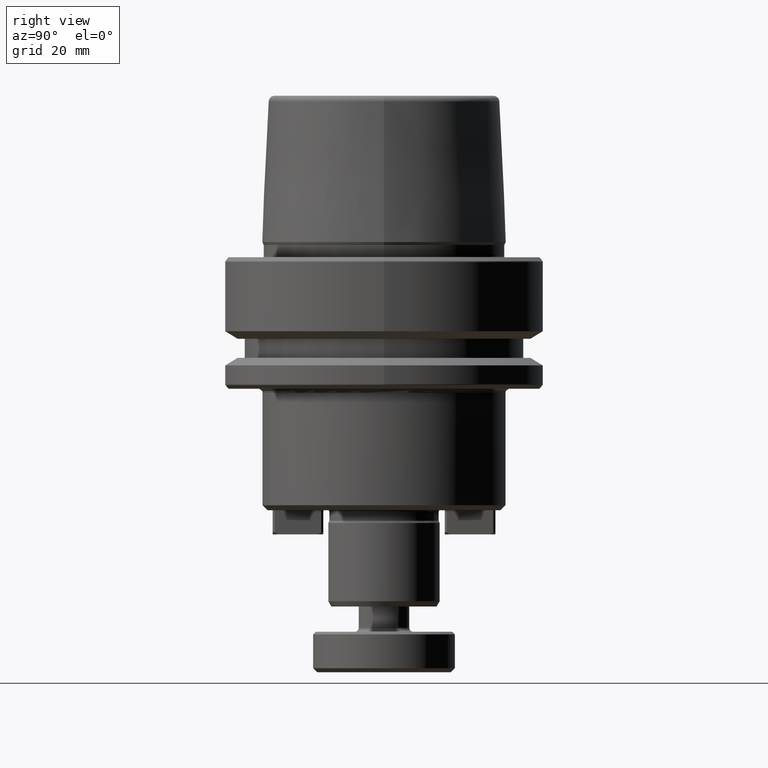
[diagram: clean part render]
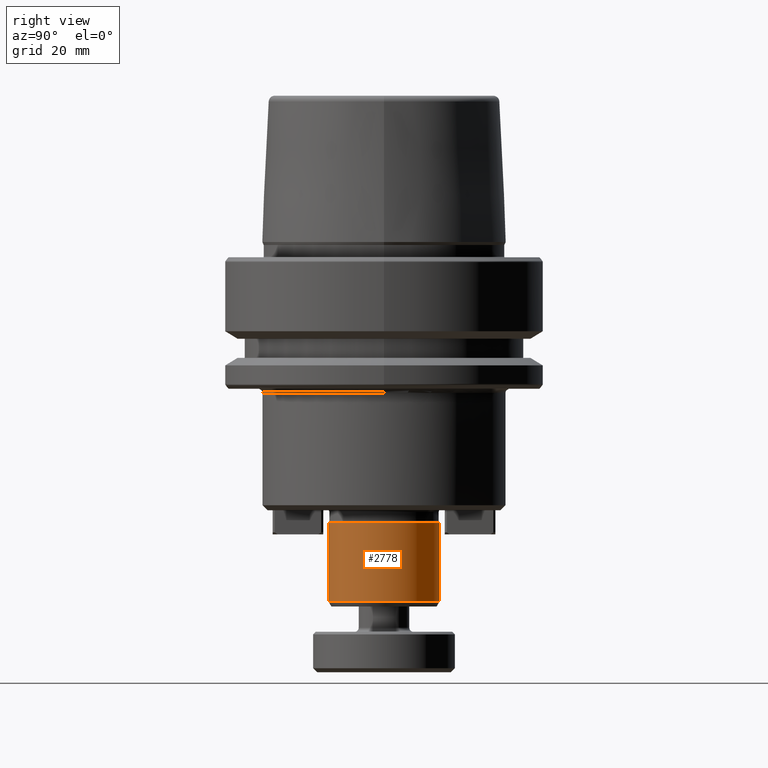
[diagram: same view with one face highlighted and labeled with its STEP entity id]
A machine part, right view. The second image highlights one B-rep face of the part: STEP entity #2778.
In plain terms, the highlighted cylindrical surface (partial cylindrical patch) has radius 11 mm, axis along (-0, 0, -1).
Its self-contained STEP definition (entity closure, byte-faithful):
#20 = DIRECTION ( 'NONE',  ( -0.0000000000000000000, 1.993611068379415200E-017, -1.000000000000000000 ) ) ;
#51 = FACE_OUTER_BOUND ( 'NONE', #118, .T. ) ;
#84 = EDGE_CURVE ( 'NONE', #997, #281, #1124, .T. ) ;
#111 = DIRECTION ( 'NONE',  ( -0.0000000000000000000, 1.993611068379415200E-017, -1.000000000000000000 ) ) ;
#118 = EDGE_LOOP ( 'NONE', ( #2139, #953, #155, #2629 ) ) ;
#155 = ORIENTED_EDGE ( 'NONE', *, *, #823, .F. ) ;
#184 = AXIS2_PLACEMENT_3D ( 'NONE', #2575, #2375, #729 ) ;
#193 = CARTESIAN_POINT ( 'NONE',  ( 0.0000000000000000000, 8.572527594031484000E-016, -69.00000000000000000 ) ) ;
#205 = DIRECTION ( 'NONE',  ( 0.0000000000000000000, 1.000000000000000000, 0.0000000000000000000 ) ) ;
#240 = LINE ( 'NONE', #1879, #2460 ) ;
#281 = VERTEX_POINT ( 'NONE', #315 ) ;
#315 = CARTESIAN_POINT ( 'NONE',  ( 0.0000000000000000000, 11.00000000000000000, -67.96076951545867900 ) ) ;
#369 = CIRCLE ( 'NONE', #739, 11.00000000000000000 ) ;
#571 = CIRCLE ( 'NONE', #184, 11.00000000000000000 ) ;
#729 = DIRECTION ( 'NONE',  ( 0.0000000000000000000, 1.000000000000000000, 0.0000000000000000000 ) ) ;
#739 = AXIS2_PLACEMENT_3D ( 'NONE', #1603, #111, #1387 ) ;
#823 = EDGE_CURVE ( 'NONE', #281, #1158, #369, .T. ) ;
#953 = ORIENTED_EDGE ( 'NONE', *, *, #1419, .T. ) ;
#974 = CARTESIAN_POINT ( 'NONE',  ( 1.347111479062088400E-015, -11.00000000000000000, -67.96076951545867900 ) ) ;
#997 = VERTEX_POINT ( 'NONE', #1957 ) ;
#1124 = LINE ( 'NONE', #1683, #1916 ) ;
#1158 = VERTEX_POINT ( 'NONE', #974 ) ;
#1240 = DIRECTION ( 'NONE',  ( -0.0000000000000000000, 1.993611068379415200E-017, -1.000000000000000000 ) ) ;
#1387 = DIRECTION ( 'NONE',  ( 0.0000000000000000000, 1.000000000000000000, 0.0000000000000000000 ) ) ;
#1394 = CARTESIAN_POINT ( 'NONE',  ( 1.347111479062088400E-015, -11.00000000000000000, -52.50000000000000700 ) ) ;
#1419 = EDGE_CURVE ( 'NONE', #1831, #1158, #240, .T. ) ;
#1603 = CARTESIAN_POINT ( 'NONE',  ( 0.0000000000000000000, 8.365345454373595500E-016, -67.96076951545867900 ) ) ;
#1683 = CARTESIAN_POINT ( 'NONE',  ( 0.0000000000000000000, 11.00000000000000000, -69.00000000000000000 ) ) ;
#1715 = EDGE_CURVE ( 'NONE', #997, #1831, #571, .T. ) ;
#1831 = VERTEX_POINT ( 'NONE', #1394 ) ;
#1879 = CARTESIAN_POINT ( 'NONE',  ( 1.347111479062088400E-015, -11.00000000000000000, -69.00000000000000000 ) ) ;
#1916 = VECTOR ( 'NONE', #2344, 1000.000000000000000 ) ;
#1957 = CARTESIAN_POINT ( 'NONE',  ( 0.0000000000000000000, 11.00000000000000000, -52.50000000000000700 ) ) ;
#2139 = ORIENTED_EDGE ( 'NONE', *, *, #1715, .T. ) ;
#2344 = DIRECTION ( 'NONE',  ( -0.0000000000000000000, 1.993611068379415200E-017, -1.000000000000000000 ) ) ;
#2375 = DIRECTION ( 'NONE',  ( -0.0000000000000000000, 1.993611068379415200E-017, -1.000000000000000000 ) ) ;
#2460 = VECTOR ( 'NONE', #1240, 1000.000000000000000 ) ;
#2480 = AXIS2_PLACEMENT_3D ( 'NONE', #193, #20, #205 ) ;
#2575 = CARTESIAN_POINT ( 'NONE',  ( 0.0000000000000000000, 5.283069331205448700E-016, -52.50000000000000700 ) ) ;
#2629 = ORIENTED_EDGE ( 'NONE', *, *, #84, .F. ) ;
#2651 = CYLINDRICAL_SURFACE ( 'NONE', #2480, 11.00000000000000000 ) ;
#2778 = ADVANCED_FACE ( 'NONE', ( #51 ), #2651, .T. ) ;